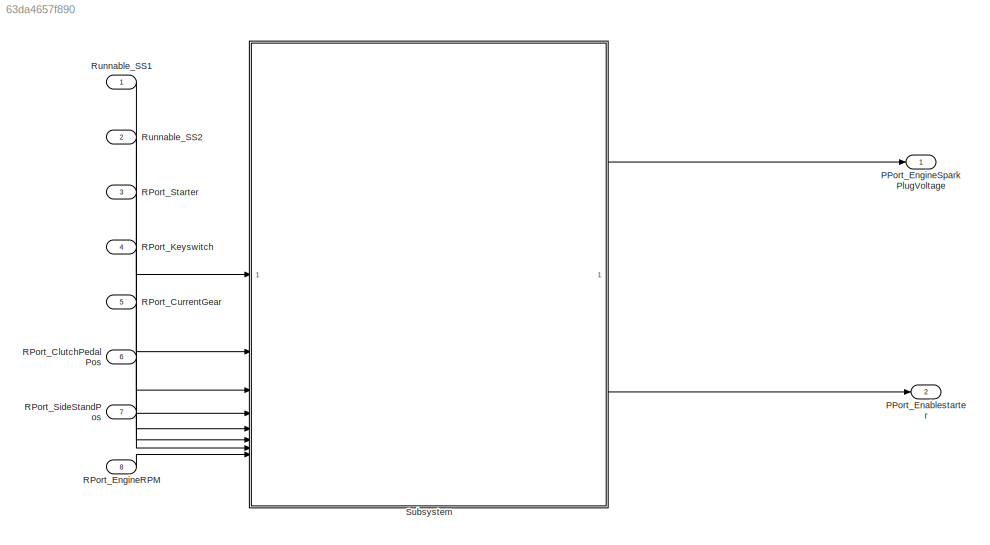
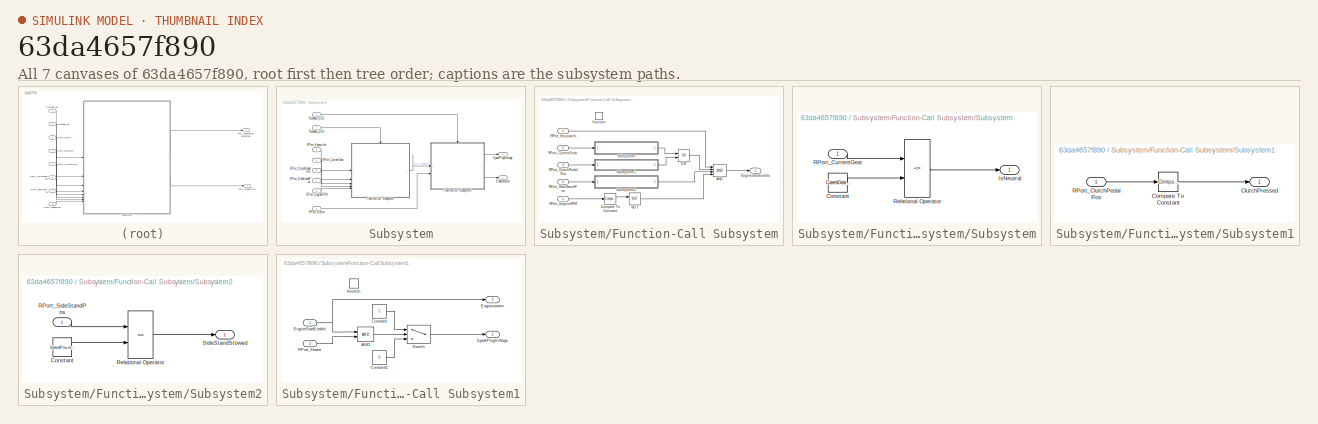
[diagram: thumbnail index - all 7 canvases of the model, root first then tree order]
MODEL slx_63da4657f890
KIND model
CONFIG AbsTol = auto
CONFIG EnableMultiTasking = off
CONFIG FixedStep = auto
CONFIG MaxStep = auto
CONFIG MinStep = auto
CONFIG RelTol = 1e-3
CONFIG SampleTimeConstraint = Unconstrained
CONFIG SolverName = FixedStepAuto
CONFIG StartTime = 0.0
CONFIG StopTime = 10.0
BLOCK [Outport] PPort_Enablestarter
  Port = 2
BLOCK [Outport] PPort_EngineSparkPlugVoltage
BLOCK [Inport] RPort_ClutchPedalPos
  OutDataTypeStr = int8
  OutMax = [100]
  OutMin = [0]
  Port = 6
BLOCK [Inport] RPort_CurrentGear
  OutDataTypeStr = Enum: CurrentGear
  Port = 5
BLOCK [Inport] RPort_EngineRPM
  OutDataTypeStr = uint32
  Port = 8
BLOCK [Inport] RPort_Keyswitch
  OutDataTypeStr = boolean
  Port = 4
BLOCK [Inport] RPort_SideStandPos
  OutDataTypeStr = Enum: StandPos
  Port = 7
BLOCK [Inport] RPort_Starter
  OutDataTypeStr = boolean
  Port = 3
BLOCK [Inport] Runnable_SS1
  OutDataTypeStr = boolean
  OutMax = [100]
  OutMin = [0]
  OutputFunctionCall = on
  SampleTime = 5
BLOCK [Inport] Runnable_SS2
  OutDataTypeStr = boolean
  OutMax = [100]
  OutMin = [0]
  OutputFunctionCall = on
  Port = 2
  SampleTime = 10
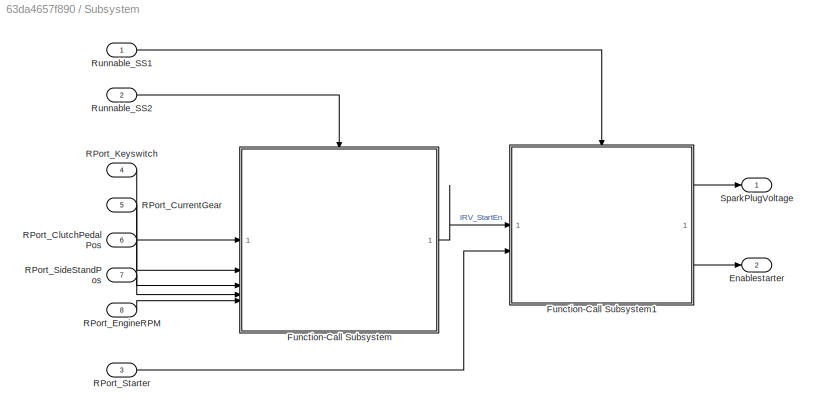
BLOCK [SubSystem] Subsystem
BLOCK [Outport] Subsystem/Enablestarter
  Port = 2
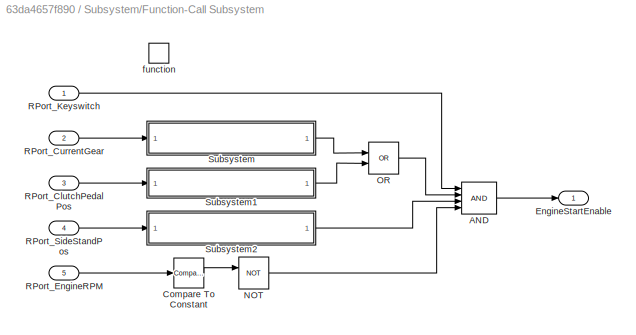
BLOCK [SubSystem] Subsystem/Function-Call Subsystem
  TreatAsAtomicUnit = on
BLOCK [Logic] Subsystem/Function-Call Subsystem/AND
  AllPortsSameDT = off
  IconShape = distinctive
  Inputs = 4
  OutDataTypeStr = boolean
BLOCK [Reference] Subsystem/Function-Call Subsystem/Compare To Constant  REF=simulink/Logic and Bit
Operations/Compare
To Constant
  SourceBlock = simulink/Logic and Bit\nOperations/Compare\nTo Constant
  SourceType = Compare To Constant
BLOCK [Outport] Subsystem/Function-Call Subsystem/EngineStartEnable
BLOCK [Logic] Subsystem/Function-Call Subsystem/NOT
  AllPortsSameDT = off
  IconShape = distinctive
  Operator = NOT
  OutDataTypeStr = boolean
BLOCK [Logic] Subsystem/Function-Call Subsystem/OR
  AllPortsSameDT = off
  IconShape = distinctive
  Operator = OR
  OutDataTypeStr = boolean
BLOCK [Inport] Subsystem/Function-Call Subsystem/RPort_ClutchPedalPos
  Port = 3
BLOCK [Inport] Subsystem/Function-Call Subsystem/RPort_CurrentGear
  Port = 2
BLOCK [Inport] Subsystem/Function-Call Subsystem/RPort_EngineRPM
  Port = 5
BLOCK [Inport] Subsystem/Function-Call Subsystem/RPort_Keyswitch
BLOCK [Inport] Subsystem/Function-Call Subsystem/RPort_SideStandPos
  Port = 4
BLOCK [SubSystem] Subsystem/Function-Call Subsystem/Subsystem
BLOCK [Constant] Subsystem/Function-Call Subsystem/Subsystem/Constant
  OutDataTypeStr = Enum: CurrentGear
  Value = CurrentGear.neutral
BLOCK [Outport] Subsystem/Function-Call Subsystem/Subsystem/IsNeutral
BLOCK [Inport] Subsystem/Function-Call Subsystem/Subsystem/RPort_CurrentGear
BLOCK [RelationalOperator] Subsystem/Function-Call Subsystem/Subsystem/Relational Operator
  InputSameDT = off
  Operator = <=
  OutDataTypeStr = boolean
  RndMeth = Simplest
BLOCK [SubSystem] Subsystem/Function-Call Subsystem/Subsystem1
BLOCK [Outport] Subsystem/Function-Call Subsystem/Subsystem1/ClutchPressed
BLOCK [Reference] Subsystem/Function-Call Subsystem/Subsystem1/Compare To Constant  REF=simulink/Logic and Bit
Operations/Compare
To Constant
  SourceBlock = simulink/Logic and Bit\nOperations/Compare\nTo Constant
  SourceType = Compare To Constant
BLOCK [Inport] Subsystem/Function-Call Subsystem/Subsystem1/RPort_ClutchPedalPos
BLOCK [SubSystem] Subsystem/Function-Call Subsystem/Subsystem2
BLOCK [Constant] Subsystem/Function-Call Subsystem/Subsystem2/Constant
  OutDataTypeStr = Enum: StandPos
  Value = StandPos.stowed
BLOCK [Inport] Subsystem/Function-Call Subsystem/Subsystem2/RPort_SideStandPos
BLOCK [RelationalOperator] Subsystem/Function-Call Subsystem/Subsystem2/Relational Operator
  InputSameDT = off
  Operator = ==
  OutDataTypeStr = boolean
  RndMeth = Simplest
BLOCK [Outport] Subsystem/Function-Call Subsystem/Subsystem2/SideStandStowed
BLOCK [TriggerPort] Subsystem/Function-Call Subsystem/function
  SampleTime = -1
  SampleTimeType = periodic
  StatesWhenEnabling = held
  TriggerType = function-call
  VariantControl = (inherit)
BLOCK [SubSystem] Subsystem/Function-Call Subsystem1
  TreatAsAtomicUnit = on
BLOCK [Logic] Subsystem/Function-Call Subsystem1/AND
  AllPortsSameDT = off
  IconShape = distinctive
  OutDataTypeStr = boolean
BLOCK [Constant] Subsystem/Function-Call Subsystem1/Constant
  Value = 5
BLOCK [Constant] Subsystem/Function-Call Subsystem1/Constant1
  Value = 0
BLOCK [Inport] Subsystem/Function-Call Subsystem1/EngineStartEnable
BLOCK [Outport] Subsystem/Function-Call Subsystem1/Enginestarten
  Port = 2
BLOCK [Inport] Subsystem/Function-Call Subsystem1/RPort_Starter
  Port = 2
BLOCK [Outport] Subsystem/Function-Call Subsystem1/SparkPlugVoltage
BLOCK [Switch] Subsystem/Function-Call Subsystem1/Switch
  Criteria = u2 > Threshold
  InputSameDT = off
  SaturateOnIntegerOverflow = off
BLOCK [TriggerPort] Subsystem/Function-Call Subsystem1/function
  SampleTime = -1
  SampleTimeType = periodic
  StatesWhenEnabling = held
  TriggerType = function-call
  VariantControl = (inherit)
BLOCK [Inport] Subsystem/RPort_ClutchPedalPos
  Port = 6
BLOCK [Inport] Subsystem/RPort_CurrentGear
  Port = 5
BLOCK [Inport] Subsystem/RPort_EngineRPM
  Port = 8
BLOCK [Inport] Subsystem/RPort_Keyswitch
  Port = 4
BLOCK [Inport] Subsystem/RPort_SideStandPos
  Port = 7
BLOCK [Inport] Subsystem/RPort_Starter
  Port = 3
BLOCK [Inport] Subsystem/Runnable_SS1
  SampleTime = 5
BLOCK [Inport] Subsystem/Runnable_SS2
  Port = 2
  SampleTime = 10
BLOCK [Outport] Subsystem/SparkPlugVoltage
LINE RPort_ClutchPedalPos:1 -> Subsystem:6
LINE RPort_CurrentGear:1 -> Subsystem:5
LINE RPort_EngineRPM:1 -> Subsystem:8
LINE RPort_Keyswitch:1 -> Subsystem:4
LINE RPort_SideStandPos:1 -> Subsystem:7
LINE RPort_Starter:1 -> Subsystem:3
LINE Runnable_SS1:1 -> Subsystem:1
LINE Runnable_SS2:1 -> Subsystem:2
LINE Subsystem/Function-Call Subsystem/AND:1 -> Subsystem/Function-Call Subsystem/EngineStartEnable:1
LINE Subsystem/Function-Call Subsystem/Compare To Constant:1 -> Subsystem/Function-Call Subsystem/NOT:1
LINE Subsystem/Function-Call Subsystem/NOT:1 -> Subsystem/Function-Call Subsystem/AND:4
LINE Subsystem/Function-Call Subsystem/OR:1 -> Subsystem/Function-Call Subsystem/AND:2
LINE Subsystem/Function-Call Subsystem/RPort_ClutchPedalPos:1 -> Subsystem/Function-Call Subsystem/Subsystem1:1
LINE Subsystem/Function-Call Subsystem/RPort_CurrentGear:1 -> Subsystem/Function-Call Subsystem/Subsystem:1
LINE Subsystem/Function-Call Subsystem/RPort_EngineRPM:1 -> Subsystem/Function-Call Subsystem/Compare To Constant:1
LINE Subsystem/Function-Call Subsystem/RPort_Keyswitch:1 -> Subsystem/Function-Call Subsystem/AND:1
LINE Subsystem/Function-Call Subsystem/RPort_SideStandPos:1 -> Subsystem/Function-Call Subsystem/Subsystem2:1
LINE Subsystem/Function-Call Subsystem/Subsystem/Constant:1 -> Subsystem/Function-Call Subsystem/Subsystem/Relational Operator:2
LINE Subsystem/Function-Call Subsystem/Subsystem/RPort_CurrentGear:1 -> Subsystem/Function-Call Subsystem/Subsystem/Relational Operator:1
LINE Subsystem/Function-Call Subsystem/Subsystem/Relational Operator:1 -> Subsystem/Function-Call Subsystem/Subsystem/IsNeutral:1
LINE Subsystem/Function-Call Subsystem/Subsystem1/Compare To Constant:1 -> Subsystem/Function-Call Subsystem/Subsystem1/ClutchPressed:1
LINE Subsystem/Function-Call Subsystem/Subsystem1/RPort_ClutchPedalPos:1 -> Subsystem/Function-Call Subsystem/Subsystem1/Compare To Constant:1
LINE Subsystem/Function-Call Subsystem/Subsystem1:1 -> Subsystem/Function-Call Subsystem/OR:2
LINE Subsystem/Function-Call Subsystem/Subsystem2/Constant:1 -> Subsystem/Function-Call Subsystem/Subsystem2/Relational Operator:2
LINE Subsystem/Function-Call Subsystem/Subsystem2/RPort_SideStandPos:1 -> Subsystem/Function-Call Subsystem/Subsystem2/Relational Operator:1
LINE Subsystem/Function-Call Subsystem/Subsystem2/Relational Operator:1 -> Subsystem/Function-Call Subsystem/Subsystem2/SideStandStowed:1
LINE Subsystem/Function-Call Subsystem/Subsystem2:1 -> Subsystem/Function-Call Subsystem/AND:3
LINE Subsystem/Function-Call Subsystem/Subsystem:1 -> Subsystem/Function-Call Subsystem/OR:1
LINE Subsystem/Function-Call Subsystem1/AND:1 -> Subsystem/Function-Call Subsystem1/Switch:2
LINE Subsystem/Function-Call Subsystem1/Constant1:1 -> Subsystem/Function-Call Subsystem1/Switch:3
LINE Subsystem/Function-Call Subsystem1/Constant:1 -> Subsystem/Function-Call Subsystem1/Switch:1
NET Subsystem/Function-Call Subsystem1/EngineStartEnable:1 -> Subsystem/Function-Call Subsystem1/AND:1, Subsystem/Function-Call Subsystem1/Enginestarten:1
LINE Subsystem/Function-Call Subsystem1/RPort_Starter:1 -> Subsystem/Function-Call Subsystem1/AND:2
LINE Subsystem/Function-Call Subsystem1/Switch:1 -> Subsystem/Function-Call Subsystem1/SparkPlugVoltage:1
LINE Subsystem/Function-Call Subsystem1:1 -> Subsystem/SparkPlugVoltage:1
LINE Subsystem/Function-Call Subsystem1:2 -> Subsystem/Enablestarter:1
LINE Subsystem/Function-Call Subsystem:1 -> Subsystem/Function-Call Subsystem1:1
LINE Subsystem/RPort_ClutchPedalPos:1 -> Subsystem/Function-Call Subsystem:3
LINE Subsystem/RPort_CurrentGear:1 -> Subsystem/Function-Call Subsystem:2
LINE Subsystem/RPort_EngineRPM:1 -> Subsystem/Function-Call Subsystem:5
LINE Subsystem/RPort_Keyswitch:1 -> Subsystem/Function-Call Subsystem:1
LINE Subsystem/RPort_SideStandPos:1 -> Subsystem/Function-Call Subsystem:4
LINE Subsystem/RPort_Starter:1 -> Subsystem/Function-Call Subsystem1:2
LINE Subsystem/Runnable_SS1:1 -> Subsystem/Function-Call Subsystem1:trigger
LINE Subsystem/Runnable_SS2:1 -> Subsystem/Function-Call Subsystem:trigger
LINE Subsystem:1 -> PPort_EngineSparkPlugVoltage:1
LINE Subsystem:2 -> PPort_Enablestarter:1
note: NET lines group one-source signal fan-out (src -> all destinations, sorted); 1:1 wires keep LINE
CHART Simulink Function scheduler states=1 transitions=1
  STATE_LABEL 'Run\n\n\n\nsend(Runnable_SS1);\n\nif t == 0 || every(2, tick)\n    send(Runnable_SS2);\nend'
